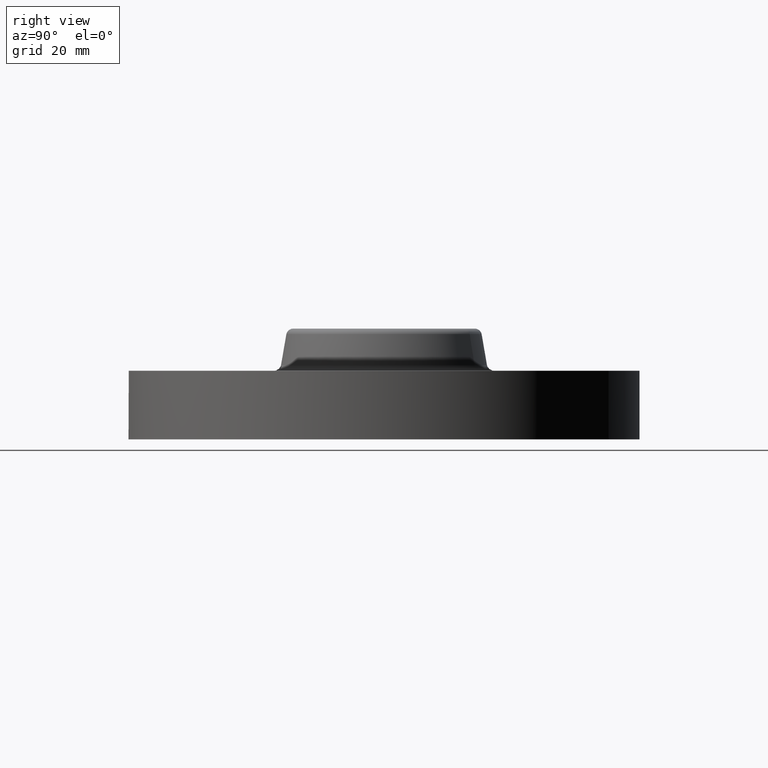
[diagram: clean part render]
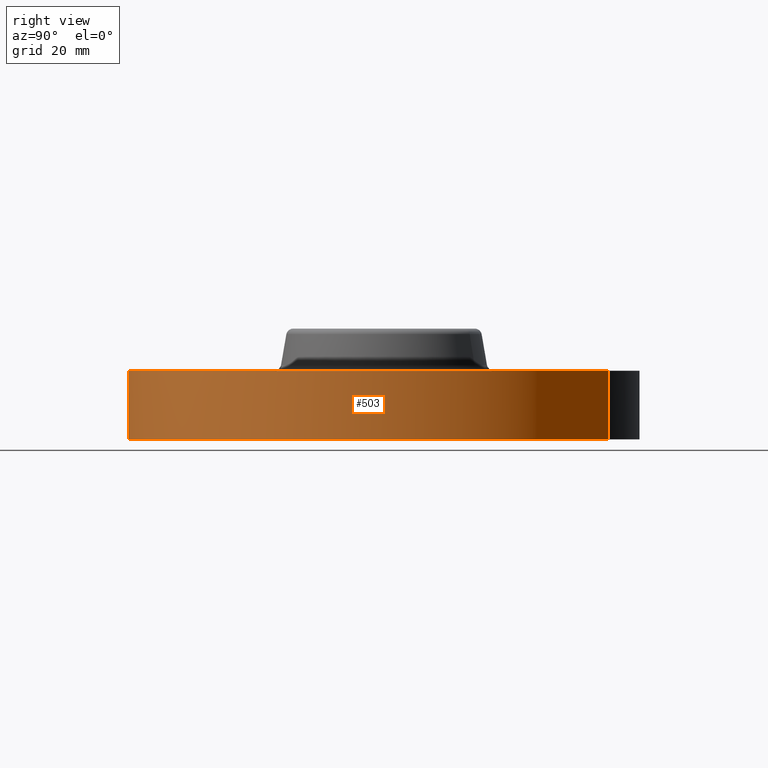
[diagram: same view with one face highlighted and labeled with its STEP entity id]
A machine part, right view. The second image highlights one B-rep face of the part: STEP entity #503.
In plain terms, the highlighted cylindrical surface (partial cylindrical patch) has radius 58.674 mm, axis along (0, 0, -1).
Its self-contained STEP definition (entity closure, byte-faithful):
#284=AXIS2_PLACEMENT_3D('Circle Axis2P3D',#282,#283,$) ;
#478=AXIS2_PLACEMENT_3D('Cylinder Axis2P3D',#475,#476,#477) ;
#277=CARTESIAN_POINT('Vertex',(-1.10747299421,-2.02721571798,0.)) ;
#279=CARTESIAN_POINT('Vertex',(1.10747299421,2.027215718,0.)) ;
#282=CARTESIAN_POINT('Axis2P3D Location',(5.59482469102E-016,1.13254637514E-011,0.)) ;
#442=CARTESIAN_POINT('Line Origine',(-1.10747299418,-2.02721571798,0.310000000025)) ;
#446=CARTESIAN_POINT('Vertex',(-1.10747299418,-2.02721571798,0.620000000018)) ;
#453=CARTESIAN_POINT('Vertex',(1.10747299418,2.02721571798,0.620000000018)) ;
#456=CARTESIAN_POINT('Line Origine',(1.10747299418,2.02721571798,0.310000000025)) ;
#475=CARTESIAN_POINT('Axis2P3D Location',(0.,0.,0.500000000002)) ;
#481=CARTESIAN_POINT('Control Point',(1.10747299418,2.02721571797,0.620000000018)) ;
#482=CARTESIAN_POINT('Control Point',(1.42590729452,1.85325426685,0.620000000018)) ;
#483=CARTESIAN_POINT('Control Point',(1.71018434381,1.61676838705,0.620000000017)) ;
#484=CARTESIAN_POINT('Control Point',(1.94387991118,1.32665044307,0.620000000016)) ;
#485=CARTESIAN_POINT('Control Point',(2.28492391662,0.67041494059,0.620000000014)) ;
#486=CARTESIAN_POINT('Control Point',(2.35251083668,-0.066055056493,0.620000000013)) ;
#487=CARTESIAN_POINT('Control Point',(2.31261419157,-0.436447142444,0.620000000012)) ;
#488=CARTESIAN_POINT('Control Point',(2.08974014664,-1.14163024524,0.62000000001)) ;
#489=CARTESIAN_POINT('Control Point',(1.61676838706,-1.71018434381,0.620000000009)) ;
#490=CARTESIAN_POINT('Control Point',(1.32665044308,-1.94387991118,0.620000000008)) ;
#491=CARTESIAN_POINT('Control Point',(0.670414940591,-2.28492391662,0.620000000006)) ;
#492=CARTESIAN_POINT('Control Point',(-0.0660550564923,-2.35251083668,0.620000000004)) ;
#493=CARTESIAN_POINT('Control Point',(-0.436447142444,-2.31261419157,0.620000000004)) ;
#494=CARTESIAN_POINT('Control Point',(-0.78903869384,-2.2011771691,0.620000000003)) ;
#495=CARTESIAN_POINT('Control Point',(-1.10747299418,-2.02721571798,0.620000000002)) ;
#283=DIRECTION('Axis2P3D Direction',(0.,0.,-0.0393700787402)) ;
#443=DIRECTION('Vector Direction',(0.,0.,-0.0393700787402)) ;
#457=DIRECTION('Vector Direction',(0.,0.,-0.0393700787402)) ;
#476=DIRECTION('Axis2P3D Direction',(0.,0.,-0.0393700787402)) ;
#477=DIRECTION('Axis2P3D XDirection',(0.0188750212049,0.0345504945626,0.)) ;
#444=VECTOR('Line Direction',#443,0.0393700787402) ;
#458=VECTOR('Line Direction',#457,0.0393700787402) ;
#498=ORIENTED_EDGE('',*,*,#286,.F.) ;
#499=ORIENTED_EDGE('',*,*,#460,.T.) ;
#500=ORIENTED_EDGE('',*,*,#496,.T.) ;
#501=ORIENTED_EDGE('',*,*,#448,.F.) ;
#503=ADVANCED_FACE('PartBody',(#502),#479,.T.) ;
#480=B_SPLINE_CURVE_WITH_KNOTS('',5,(#481,#482,#483,#484,#485,#486,#487,#488,#489,#490,#491,#492,#493,#494,#495),.UNSPECIFIED.,.F.,.U.,(6,3,3,3,6),(-92.1649036787,-46.0824518394,-7.1054273576E-015,46.0824518394,92.1649036787),.UNSPECIFIED.) ;
#285=CIRCLE('generated circle',#284,2.31000000004) ;
#479=CYLINDRICAL_SURFACE('generated cylinder',#478,2.31000000001) ;
#286=EDGE_CURVE('',#280,#278,#285,.T.) ;
#448=EDGE_CURVE('',#278,#447,#445,.F.) ;
#460=EDGE_CURVE('',#280,#454,#459,.F.) ;
#496=EDGE_CURVE('',#454,#447,#480,.T.) ;
#497=EDGE_LOOP('',(#498,#499,#500,#501)) ;
#502=FACE_OUTER_BOUND('',#497,.T.) ;
#445=LINE('Line',#442,#444) ;
#459=LINE('Line',#456,#458) ;
#278=VERTEX_POINT('',#277) ;
#280=VERTEX_POINT('',#279) ;
#447=VERTEX_POINT('',#446) ;
#454=VERTEX_POINT('',#453) ;